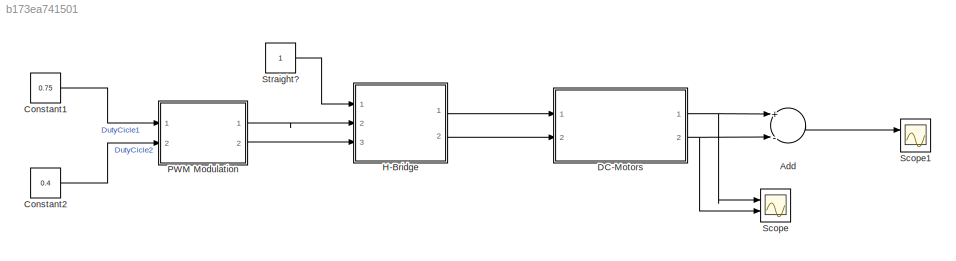
MODEL slx_b173ea741501
KIND model
CONFIG AbsTol = auto
CONFIG FixedStep = auto
CONFIG MaxStep = auto
CONFIG MinStep = auto
CONFIG RelTol = 1e-3
CONFIG SampleTimeConstraint = Unconstrained
CONFIG Solver = VariableStepAuto
CONFIG SolverMode = Auto
CONFIG SolverName = VariableStepAuto
CONFIG StartTime = 0.0
CONFIG StopTime = 0.2
BLOCK [Sum] Add
  InputSameDT = off
  Inputs = +-
  OutDataTypeStr = Inherit: Inherit via internal rule
  Ports = [2, 1]
  SaturateOnIntegerOverflow = off
BLOCK [Constant] Constant1
  Value = 0.75
BLOCK [Constant] Constant2
  Value = 0.4
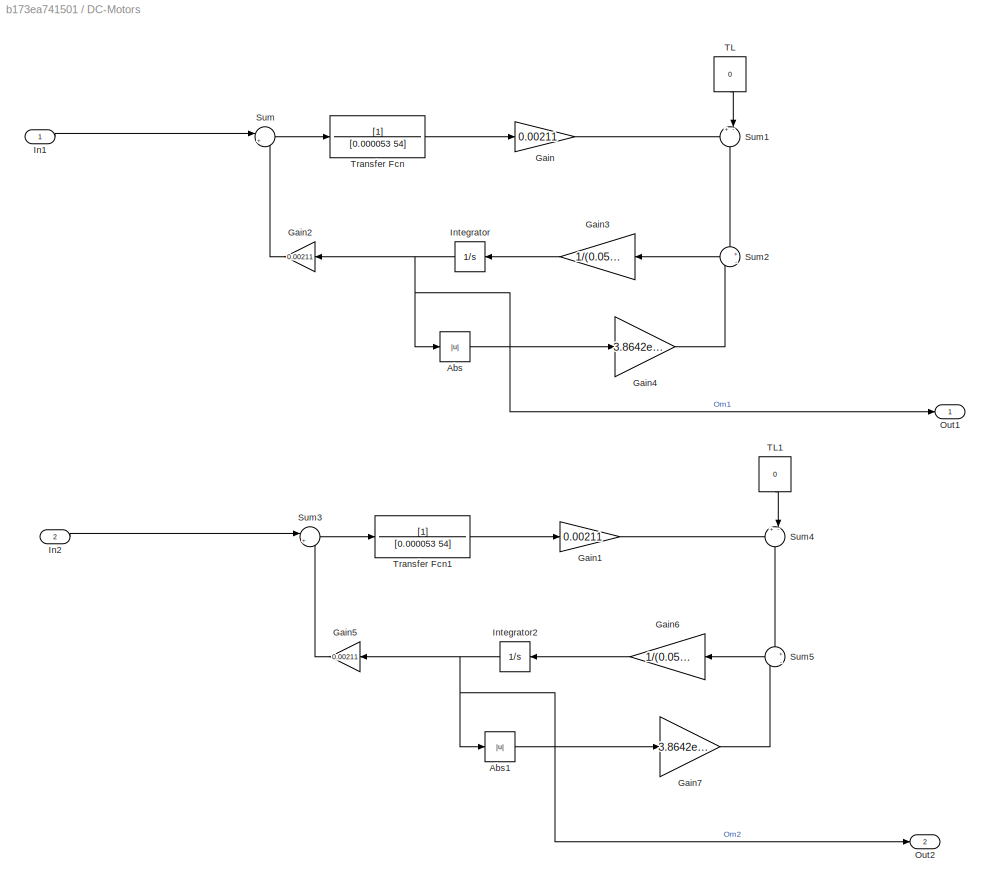
BLOCK [SubSystem] DC-Motors 
  Ports = [2, 2]
  RequestExecContextInheritance = off
  Variant = off
BLOCK [Abs] DC-Motors /Abs
  SaturateOnIntegerOverflow = off
BLOCK [Abs] DC-Motors /Abs1
  SaturateOnIntegerOverflow = off
BLOCK [Gain] DC-Motors /Gain
  Gain = 0.00211
  OutDataTypeStr = Inherit: Inherit via internal rule
  ParamDataTypeStr = Inherit: Inherit via internal rule
  SaturateOnIntegerOverflow = off
BLOCK [Gain] DC-Motors /Gain1
  Gain = 0.00211
  OutDataTypeStr = Inherit: Inherit via internal rule
  ParamDataTypeStr = Inherit: Inherit via internal rule
  SaturateOnIntegerOverflow = off
BLOCK [Gain] DC-Motors /Gain2
  Gain = 0.00211
  OutDataTypeStr = Inherit: Inherit via internal rule
  ParamDataTypeStr = Inherit: Inherit via internal rule
  SaturateOnIntegerOverflow = off
BLOCK [Gain] DC-Motors /Gain3
  Gain = 1/(0.051e-7)
  OutDataTypeStr = Inherit: Inherit via internal rule
  ParamDataTypeStr = Inherit: Inherit via internal rule
  SaturateOnIntegerOverflow = off
BLOCK [Gain] DC-Motors /Gain4
  Gain = 3.8642e-7
  OutDataTypeStr = Inherit: Inherit via internal rule
  ParamDataTypeStr = Inherit: Inherit via internal rule
  SaturateOnIntegerOverflow = off
BLOCK [Gain] DC-Motors /Gain5
  Gain = 0.00211
  OutDataTypeStr = Inherit: Inherit via internal rule
  ParamDataTypeStr = Inherit: Inherit via internal rule
  SaturateOnIntegerOverflow = off
BLOCK [Gain] DC-Motors /Gain6
  Gain = 1/(0.051e-7)
  OutDataTypeStr = Inherit: Inherit via internal rule
  ParamDataTypeStr = Inherit: Inherit via internal rule
  SaturateOnIntegerOverflow = off
BLOCK [Gain] DC-Motors /Gain7
  Gain = 3.8642e-7
  OutDataTypeStr = Inherit: Inherit via internal rule
  ParamDataTypeStr = Inherit: Inherit via internal rule
  SaturateOnIntegerOverflow = off
BLOCK [Inport] DC-Motors /In1
  IconDisplay = Port number
BLOCK [Inport] DC-Motors /In2
  IconDisplay = Port number
  Port = 2
BLOCK [Integrator] DC-Motors /Integrator
  Ports = [1, 1]
BLOCK [Integrator] DC-Motors /Integrator2
  Ports = [1, 1]
BLOCK [Outport] DC-Motors /Out1
  IconDisplay = Port number
BLOCK [Outport] DC-Motors /Out2
  IconDisplay = Port number
  Port = 2
BLOCK [Sum] DC-Motors /Sum
  IconShape = round
  InputSameDT = off
  Inputs = |+-
  OutDataTypeStr = Inherit: Inherit via internal rule
  Ports = [2, 1]
  SaturateOnIntegerOverflow = off
BLOCK [Sum] DC-Motors /Sum1
  IconShape = round
  InputSameDT = off
  Inputs = +-|
  OutDataTypeStr = Inherit: Inherit via internal rule
  Ports = [2, 1]
  SaturateOnIntegerOverflow = off
BLOCK [Sum] DC-Motors /Sum2
  IconShape = round
  InputSameDT = off
  Inputs = +|-
  OutDataTypeStr = Inherit: Inherit via internal rule
  Ports = [2, 1]
  SaturateOnIntegerOverflow = off
BLOCK [Sum] DC-Motors /Sum3
  IconShape = round
  InputSameDT = off
  Inputs = |+-
  OutDataTypeStr = Inherit: Inherit via internal rule
  Ports = [2, 1]
  SaturateOnIntegerOverflow = off
BLOCK [Sum] DC-Motors /Sum4
  IconShape = round
  InputSameDT = off
  Inputs = +-|
  OutDataTypeStr = Inherit: Inherit via internal rule
  Ports = [2, 1]
  SaturateOnIntegerOverflow = off
BLOCK [Sum] DC-Motors /Sum5
  IconShape = round
  InputSameDT = off
  Inputs = +|-
  OutDataTypeStr = Inherit: Inherit via internal rule
  Ports = [2, 1]
  SaturateOnIntegerOverflow = off
BLOCK [Constant] DC-Motors /TL
  Value = 0
BLOCK [Constant] DC-Motors /TL1
  Value = 0
BLOCK [TransferFcn] DC-Motors /Transfer Fcn
  Denominator = [0.000053 54]
BLOCK [TransferFcn] DC-Motors /Transfer Fcn1
  Denominator = [0.000053 54]
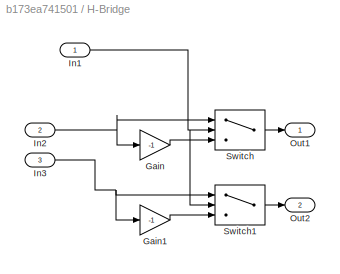
BLOCK [SubSystem] H-Bridge 
  Ports = [3, 2]
  RequestExecContextInheritance = off
  Variant = off
BLOCK [Gain] H-Bridge /Gain
  Gain = -1
  OutDataTypeStr = Inherit: Inherit via internal rule
  ParamDataTypeStr = Inherit: Inherit via internal rule
  SaturateOnIntegerOverflow = off
BLOCK [Gain] H-Bridge /Gain1
  Gain = -1
  OutDataTypeStr = Inherit: Inherit via internal rule
  ParamDataTypeStr = Inherit: Inherit via internal rule
  SaturateOnIntegerOverflow = off
BLOCK [Inport] H-Bridge /In1
  IconDisplay = Port number
BLOCK [Inport] H-Bridge /In2
  IconDisplay = Port number
  Port = 2
BLOCK [Inport] H-Bridge /In3
  IconDisplay = Port number
  Port = 3
BLOCK [Outport] H-Bridge /Out1
  IconDisplay = Port number
BLOCK [Outport] H-Bridge /Out2
  IconDisplay = Port number
  Port = 2
BLOCK [Switch] H-Bridge /Switch
  Criteria = u2 > Threshold
  InputSameDT = off
  SaturateOnIntegerOverflow = off
BLOCK [Switch] H-Bridge /Switch1
  Criteria = u2 > Threshold
  InputSameDT = off
  SaturateOnIntegerOverflow = off
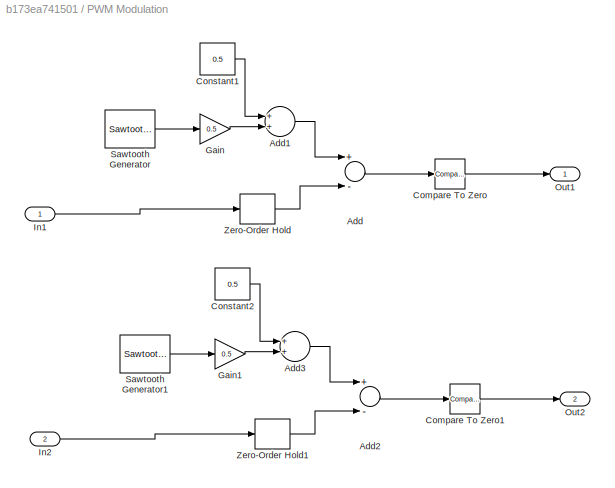
BLOCK [SubSystem] PWM Modulation
  Ports = [2, 2]
  RequestExecContextInheritance = off
  Variant = off
BLOCK [Sum] PWM Modulation/Add
  InputSameDT = off
  Inputs = +-
  OutDataTypeStr = Inherit: Inherit via internal rule
  Ports = [2, 1]
  SaturateOnIntegerOverflow = off
BLOCK [Sum] PWM Modulation/Add1
  InputSameDT = off
  OutDataTypeStr = Inherit: Inherit via internal rule
  Ports = [2, 1]
  SaturateOnIntegerOverflow = off
BLOCK [Sum] PWM Modulation/Add2
  InputSameDT = off
  Inputs = +-
  OutDataTypeStr = Inherit: Inherit via internal rule
  Ports = [2, 1]
  SaturateOnIntegerOverflow = off
BLOCK [Sum] PWM Modulation/Add3
  InputSameDT = off
  OutDataTypeStr = Inherit: Inherit via internal rule
  Ports = [2, 1]
  SaturateOnIntegerOverflow = off
BLOCK [Reference] PWM Modulation/Compare To Zero  REF=simulink/Logic and Bit
Operations/Compare
To Zero
  Ports = [1, 1]
  SourceBlock = simulink/Logic and Bit\nOperations/Compare\nTo Zero
  SourceType = Compare To Zero
BLOCK [Reference] PWM Modulation/Compare To Zero1  REF=simulink/Logic and Bit
Operations/Compare
To Zero
  Ports = [1, 1]
  SourceBlock = simulink/Logic and Bit\nOperations/Compare\nTo Zero
  SourceType = Compare To Zero
BLOCK [Constant] PWM Modulation/Constant1
  Value = 0.5
BLOCK [Constant] PWM Modulation/Constant2
  Value = 0.5
BLOCK [Gain] PWM Modulation/Gain
  Gain = 0.5
  OutDataTypeStr = Inherit: Inherit via internal rule
  ParamDataTypeStr = Inherit: Inherit via internal rule
  SaturateOnIntegerOverflow = off
BLOCK [Gain] PWM Modulation/Gain1
  Gain = 0.5
  OutDataTypeStr = Inherit: Inherit via internal rule
  ParamDataTypeStr = Inherit: Inherit via internal rule
  SaturateOnIntegerOverflow = off
BLOCK [Inport] PWM Modulation/In1
  IconDisplay = Port number
BLOCK [Inport] PWM Modulation/In2
  IconDisplay = Port number
  Port = 2
BLOCK [Outport] PWM Modulation/Out1
  IconDisplay = Port number
BLOCK [Outport] PWM Modulation/Out2
  IconDisplay = Port number
  Port = 2
BLOCK [Reference] PWM Modulation/Sawtooth Generator  REF=powerlib_meascontrol/Pulse & Signal
Generators/Sawtooth
Generator
  Ports = [0, 1]
  SourceBlock = powerlib_meascontrol/Pulse & Signal\nGenerators/Sawtooth\nGenerator
  SourceType = Sawtooth Generator
BLOCK [Reference] PWM Modulation/Sawtooth Generator1  REF=powerlib_meascontrol/Pulse & Signal
Generators/Sawtooth
Generator
  Ports = [0, 1]
  SourceBlock = powerlib_meascontrol/Pulse & Signal\nGenerators/Sawtooth\nGenerator
  SourceType = Sawtooth Generator
BLOCK [ZeroOrderHold] PWM Modulation/Zero-Order Hold
  SampleTime = -1
BLOCK [ZeroOrderHold] PWM Modulation/Zero-Order Hold1
  SampleTime = -1
BLOCK [Scope] Scope
  NumInputPorts = 2
  Ports = [2]
  ScopeSpecificationString = Simulink.scopes.TimeScopeBlockCfg('CurrentConfiguration', extmgr.ConfigurationSet(extmgr.Configuration('Core','General UI',true),extmgr.Configuration('Core','Source UI',true),extmgr.Configuration('Sources','WiredSimulink',true),extmgr.Configuration('Visuals','Time Domain',true,'SerializedDisplays',{struct('MinYLimReal','-7.98939','MaxYLimReal','71.90448','YLabelReal','','MinYLimMag','0.00000','Max...<+1355ch>
BLOCK [Scope] Scope1
  NumInputPorts = 2
  Ports = [2]
  ScopeSpecificationString = Simulink.scopes.TimeScopeBlockCfg('CurrentConfiguration', extmgr.ConfigurationSet(extmgr.Configuration('Core','General UI',true),extmgr.Configuration('Core','Source UI',true),extmgr.Configuration('Sources','WiredSimulink',true,'DataLoggingVariableName','ScopeData1'),extmgr.Configuration('Visuals','Time Domain',true,'SerializedDisplays',{struct('MinYLimReal','-3.86514','MaxYLimReal','34.78622','YLa...<+1378ch>
BLOCK [Constant] Straight?
LINE Add:1 -> Scope1:1
LINE Constant1:1 -> PWM Modulation:1
LINE Constant2:1 -> PWM Modulation:2
LINE DC-Motors /Abs1:1 -> DC-Motors /Gain7:1
LINE DC-Motors /Abs:1 -> DC-Motors /Gain4:1
LINE DC-Motors /Gain1:1 -> DC-Motors /Sum4:1
LINE DC-Motors /Gain2:1 -> DC-Motors /Sum:2
LINE DC-Motors /Gain3:1 -> DC-Motors /Integrator:1
LINE DC-Motors /Gain4:1 -> DC-Motors /Sum2:2
LINE DC-Motors /Gain5:1 -> DC-Motors /Sum3:2
LINE DC-Motors /Gain6:1 -> DC-Motors /Integrator2:1
LINE DC-Motors /Gain7:1 -> DC-Motors /Sum5:2
LINE DC-Motors /Gain:1 -> DC-Motors /Sum1:1
LINE DC-Motors /In1:1 -> DC-Motors /Sum:1
LINE DC-Motors /In2:1 -> DC-Motors /Sum3:1
NET DC-Motors /Integrator2:1 -> DC-Motors /Abs1:1, DC-Motors /Gain5:1, DC-Motors /Out2:1
NET DC-Motors /Integrator:1 -> DC-Motors /Abs:1, DC-Motors /Gain2:1, DC-Motors /Out1:1
LINE DC-Motors /Sum1:1 -> DC-Motors /Sum2:1
LINE DC-Motors /Sum2:1 -> DC-Motors /Gain3:1
LINE DC-Motors /Sum3:1 -> DC-Motors /Transfer Fcn1:1
LINE DC-Motors /Sum4:1 -> DC-Motors /Sum5:1
LINE DC-Motors /Sum5:1 -> DC-Motors /Gain6:1
LINE DC-Motors /Sum:1 -> DC-Motors /Transfer Fcn:1
LINE DC-Motors /TL1:1 -> DC-Motors /Sum4:2
LINE DC-Motors /TL:1 -> DC-Motors /Sum1:2
LINE DC-Motors /Transfer Fcn1:1 -> DC-Motors /Gain1:1
LINE DC-Motors /Transfer Fcn:1 -> DC-Motors /Gain:1
NET DC-Motors :1 -> Add:1, Scope:1
NET DC-Motors :2 -> Add:2, Scope:2
LINE H-Bridge /Gain1:1 -> H-Bridge /Switch1:3
LINE H-Bridge /Gain:1 -> H-Bridge /Switch:3
NET H-Bridge /In1:1 -> H-Bridge /Switch1:2, H-Bridge /Switch:2
NET H-Bridge /In2:1 -> H-Bridge /Gain:1, H-Bridge /Switch:1
NET H-Bridge /In3:1 -> H-Bridge /Gain1:1, H-Bridge /Switch1:1
LINE H-Bridge /Switch1:1 -> H-Bridge /Out2:1
LINE H-Bridge /Switch:1 -> H-Bridge /Out1:1
LINE H-Bridge :1 -> DC-Motors :1
LINE H-Bridge :2 -> DC-Motors :2
LINE PWM Modulation/Add1:1 -> PWM Modulation/Add:1
LINE PWM Modulation/Add2:1 -> PWM Modulation/Compare To Zero1:1
LINE PWM Modulation/Add3:1 -> PWM Modulation/Add2:1
LINE PWM Modulation/Add:1 -> PWM Modulation/Compare To Zero:1
LINE PWM Modulation/Compare To Zero1:1 -> PWM Modulation/Out2:1
LINE PWM Modulation/Compare To Zero:1 -> PWM Modulation/Out1:1
LINE PWM Modulation/Constant1:1 -> PWM Modulation/Add1:1
LINE PWM Modulation/Constant2:1 -> PWM Modulation/Add3:1
LINE PWM Modulation/Gain1:1 -> PWM Modulation/Add3:2
LINE PWM Modulation/Gain:1 -> PWM Modulation/Add1:2
LINE PWM Modulation/In1:1 -> PWM Modulation/Zero-Order Hold:1
LINE PWM Modulation/In2:1 -> PWM Modulation/Zero-Order Hold1:1
LINE PWM Modulation/Sawtooth Generator1:1 -> PWM Modulation/Gain1:1
LINE PWM Modulation/Sawtooth Generator:1 -> PWM Modulation/Gain:1
LINE PWM Modulation/Zero-Order Hold1:1 -> PWM Modulation/Add2:2
LINE PWM Modulation/Zero-Order Hold:1 -> PWM Modulation/Add:2
LINE PWM Modulation:1 -> H-Bridge :2
LINE PWM Modulation:2 -> H-Bridge :3
LINE Straight?:1 -> H-Bridge :1
note: NET lines group one-source signal fan-out (src -> all destinations, sorted); 1:1 wires keep LINE
